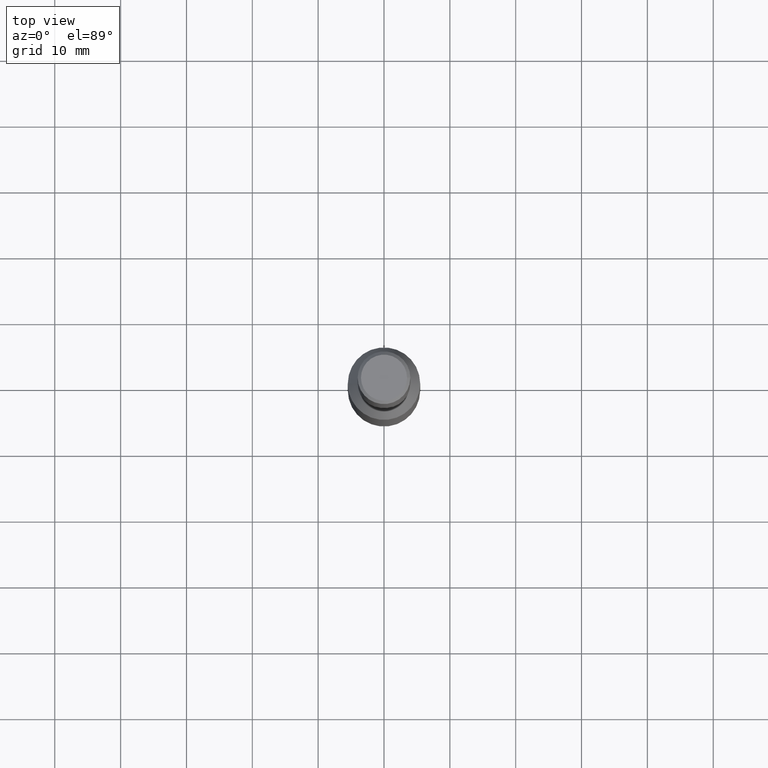
[diagram: clean part render]
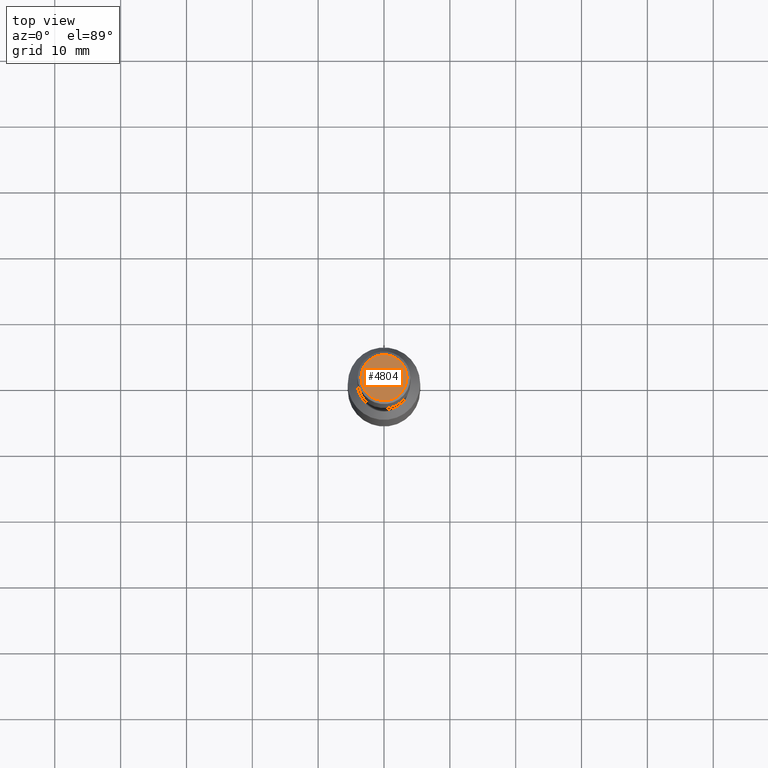
[diagram: same view with one face highlighted and labeled with its STEP entity id]
A machine part, top view. The second image highlights one B-rep face of the part: STEP entity #4804.
In plain terms, the highlighted planar face has unit normal (0, 0, 1).
Its self-contained STEP definition (entity closure, byte-faithful):
#766 = DIRECTION ( 'NONE',  ( 1.000000000000000000, 0.000000000000000000, 0.000000000000000000 ) ) ;
#3926 = DIRECTION ( 'NONE',  ( 1.000000000000000000, 0.000000000000000000, -0.000000000000000000 ) ) ;
#4022 = DIRECTION ( 'NONE',  ( 0.000000000000000000, 0.000000000000000000, 1.000000000000000000 ) ) ;
#4104 = PLANE ( 'NONE',  #10893 ) ;
#4804 = ADVANCED_FACE ( 'NONE', ( #13156 ), #4104, .T. ) ;
#5059 = AXIS2_PLACEMENT_3D ( 'NONE', #5117, #11897, #766 ) ;
#5117 = CARTESIAN_POINT ( 'NONE',  ( 0.000000000000000000, 0.000000000000000000, 110.0000000000000000 ) ) ;
#5250 = VERTEX_POINT ( 'NONE', #8858 ) ;
#7483 = CARTESIAN_POINT ( 'NONE',  ( 0.000000000000000000, 0.000000000000000000, 110.0000000000000000 ) ) ;
#7495 = EDGE_LOOP ( 'NONE', ( #13528 ) ) ;
#8858 = CARTESIAN_POINT ( 'NONE',  ( 3.500000000000016875, 0.000000000000000000, 110.0000000000000000 ) ) ;
#9049 = CIRCLE ( 'NONE', #5059, 3.500000000000016875 ) ;
#10893 = AXIS2_PLACEMENT_3D ( 'NONE', #7483, #4022, #3926 ) ;
#11897 = DIRECTION ( 'NONE',  ( 0.000000000000000000, 0.000000000000000000, 1.000000000000000000 ) ) ;
#13156 = FACE_OUTER_BOUND ( 'NONE', #7495, .T. ) ;
#13528 = ORIENTED_EDGE ( 'NONE', *, *, #14139, .T. ) ;
#14139 = EDGE_CURVE ( 'NONE', #5250, #5250, #9049, .T. ) ;